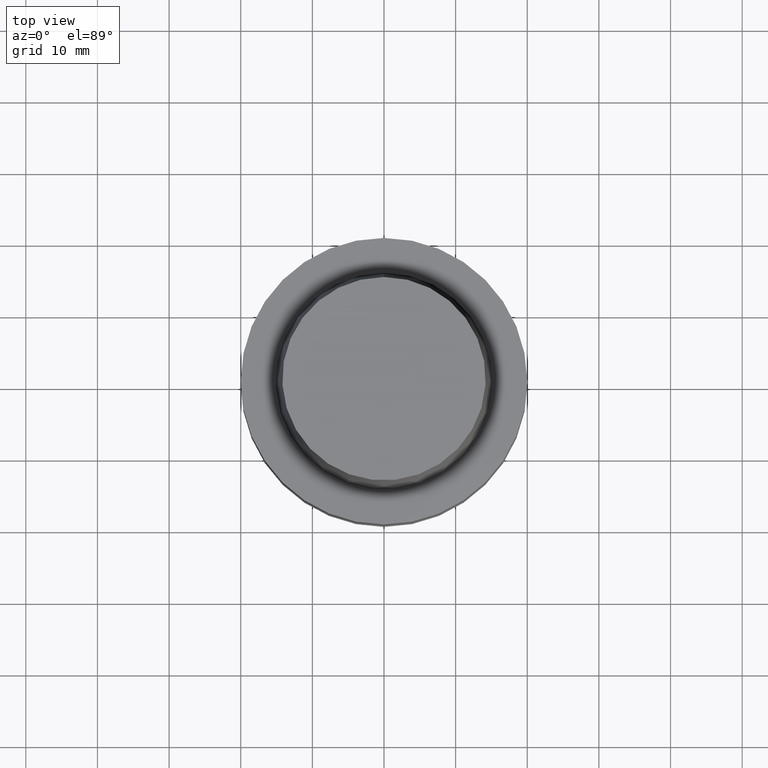
[diagram: clean part render]
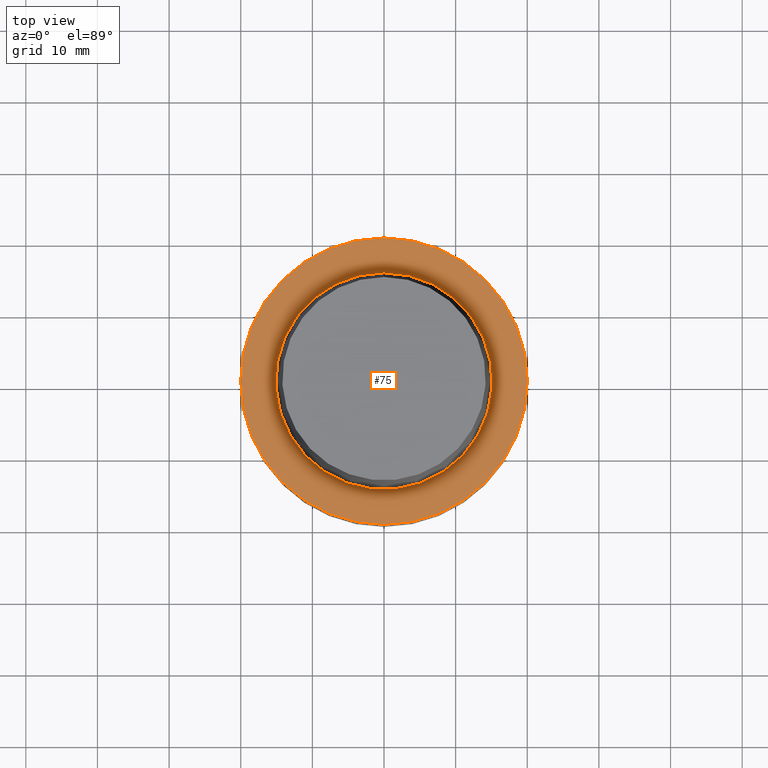
[diagram: same view with one face highlighted and labeled with its STEP entity id]
A machine part, top view. The second image highlights one B-rep face of the part: STEP entity #75.
In plain terms, the highlighted planar face has unit normal (-0, -0, 1).
Its self-contained STEP definition (entity closure, byte-faithful):
#75=ADVANCED_FACE('',(#94,#95),#96,.T.);
#94=FACE_OUTER_BOUND('',#146,.T.);
#95=FACE_BOUND('',#147,.T.);
#96=PLANE('',#148);
#146=EDGE_LOOP('',(#198));
#147=EDGE_LOOP('',(#199));
#148=AXIS2_PLACEMENT_3D('',#200,#201,#202);
#198=ORIENTED_EDGE('',*,*,#286,.F.);
#199=ORIENTED_EDGE('',*,*,#287,.T.);
#200=CARTESIAN_POINT('',(-2.16320451353574E-031,17.55,2.1492551325036E-015));
#201=DIRECTION('',(-6.12323399573677E-017,-1.22464679914735E-016,1.0));
#202=DIRECTION('',(1.23259516440783E-032,-1.0,-1.22464679914735E-016));
#286=EDGE_CURVE('',#303,#303,#304,.T.);
#287=EDGE_CURVE('',#305,#305,#306,.T.);
#303=VERTEX_POINT('',#337);
#304=CIRCLE('',#338,20.0);
#305=VERTEX_POINT('',#339);
#306=CIRCLE('',#340,15.1);
#337=CARTESIAN_POINT('',(-2.46519032881566E-031,20.0,2.44929359829471E-015));
#338=AXIS2_PLACEMENT_3D('',#371,#372,#373);
#339=CARTESIAN_POINT('',(-1.86121869825582E-031,15.1,1.8492166667125E-015));
#340=AXIS2_PLACEMENT_3D('',#374,#375,#376);
#371=CARTESIAN_POINT('',(0.0,0.0,0.0));
#372=DIRECTION('',(6.12323399573677E-017,1.22464679914735E-016,-1.0));
#373=DIRECTION('',(-1.23259516440783E-032,1.0,1.22464679914735E-016));
#374=CARTESIAN_POINT('',(0.0,0.0,0.0));
#375=DIRECTION('',(6.12323399573677E-017,1.22464679914735E-016,-1.0));
#376=DIRECTION('',(-1.23259516440783E-032,1.0,1.22464679914735E-016));